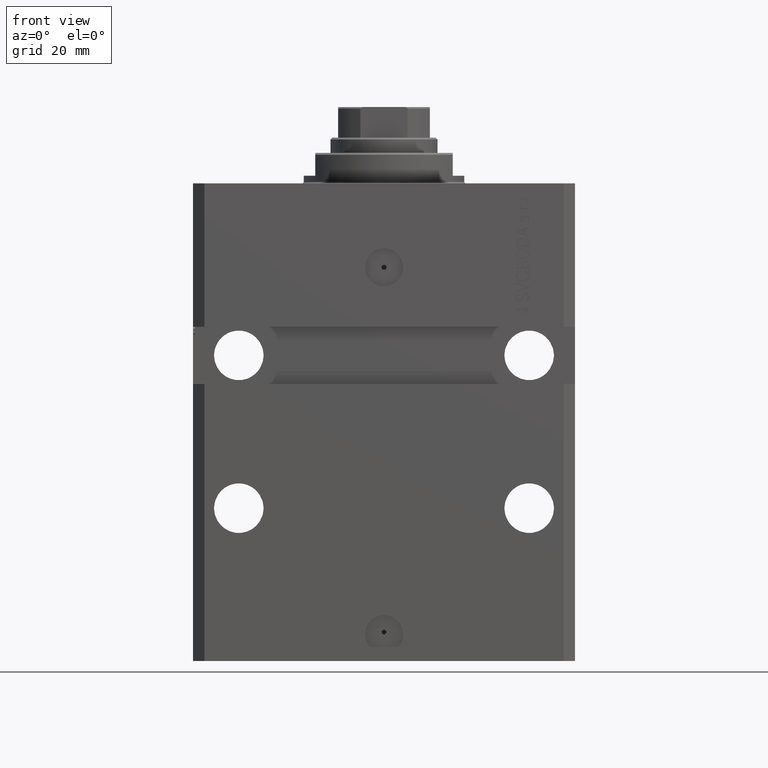
[diagram: clean part render]
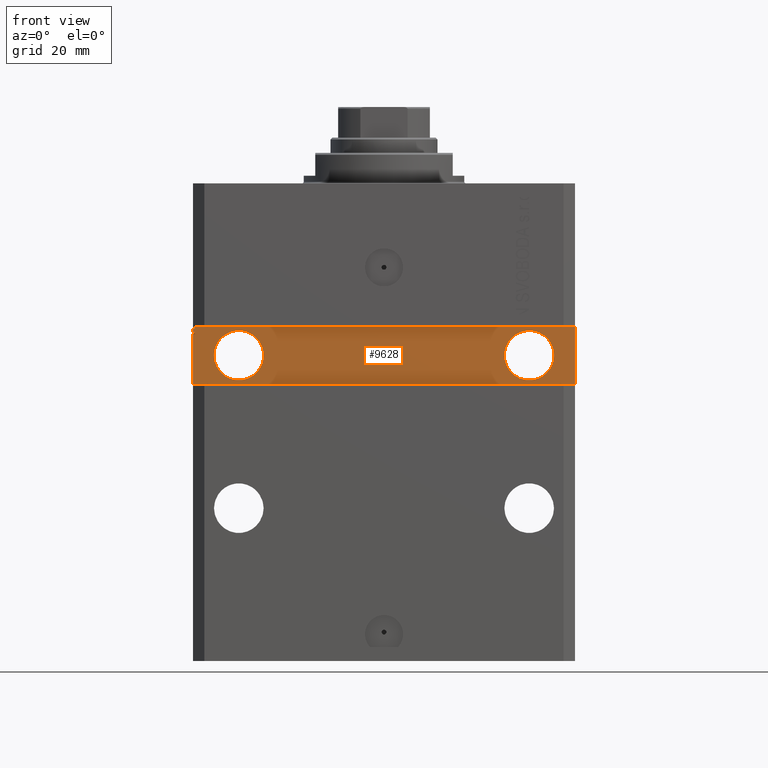
[diagram: same view with one face highlighted and labeled with its STEP entity id]
A machine part, front view. The second image highlights one B-rep face of the part: STEP entity #9628.
In plain terms, the highlighted planar face has unit normal (0, -1, 0).
Its self-contained STEP definition (entity closure, byte-faithful):
#385 = DIRECTION ( 'NONE',  ( 8.806446732139697737E-17, -1.000000000000000000, 1.232595164407830672E-32 ) ) ;
#448 = CARTESIAN_POINT ( 'NONE',  ( -50.00000000000001421, -32.50000000000000711, -38.87066340383893959 ) ) ;
#620 = PLANE ( 'NONE',  #27445 ) ;
#727 = LINE ( 'NONE', #28760, #32930 ) ;
#1464 = VERTEX_POINT ( 'NONE', #9385 ) ;
#1946 = CARTESIAN_POINT ( 'NONE',  ( -49.49999999999999289, -32.50000000000000711, -39.43474004052496440 ) ) ;
#2651 = ORIENTED_EDGE ( 'NONE', *, *, #28297, .F. ) ;
#3500 = ORIENTED_EDGE ( 'NONE', *, *, #32383, .F. ) ;
#3631 = VERTEX_POINT ( 'NONE', #29458 ) ;
#3785 = ORIENTED_EDGE ( 'NONE', *, *, #29234, .T. ) ;
#4420 = CARTESIAN_POINT ( 'NONE',  ( 44.50000000000001421, -32.50000000000000000, -45.00000000000000000 ) ) ;
#4589 = LINE ( 'NONE', #21357, #42957 ) ;
#5043 = DIRECTION ( 'NONE',  ( -1.000000000000000000, -0.000000000000000000, -0.000000000000000000 ) ) ;
#5123 = VERTEX_POINT ( 'NONE', #40687 ) ;
#5156 = CARTESIAN_POINT ( 'NONE',  ( 49.99999999999999289, -32.49999999999999289, -37.49999999999999289 ) ) ;
#5475 = VERTEX_POINT ( 'NONE', #5156 ) ;
#6593 = EDGE_CURVE ( 'NONE', #7393, #42904, #7146, .T. ) ;
#7146 = LINE ( 'NONE', #34512, #36293 ) ;
#7393 = VERTEX_POINT ( 'NONE', #10346 ) ;
#7539 = LINE ( 'NONE', #41791, #23304 ) ;
#9385 = CARTESIAN_POINT ( 'NONE',  ( -49.50000000000000711, -32.50000000000000711, -37.99999999999999289 ) ) ;
#9584 = VERTEX_POINT ( 'NONE', #25649 ) ;
#9628 = ADVANCED_FACE ( 'NONE', ( #21960, #32093, #43104 ), #620, .T. ) ;
#9895 = VECTOR ( 'NONE', #5043, 1000.000000000000000 ) ;
#9923 = CIRCLE ( 'NONE', #14333, 6.499999999999999112 ) ;
#10043 = VERTEX_POINT ( 'NONE', #23736 ) ;
#10252 = DIRECTION ( 'NONE',  ( 1.101411730780568590E-16, -1.000000000000000000, 0.000000000000000000 ) ) ;
#10346 = CARTESIAN_POINT ( 'NONE',  ( -49.49999999999977973, -32.50000000000000711, -38.87066337907741342 ) ) ;
#10526 = EDGE_CURVE ( 'NONE', #3631, #26096, #36982, .T. ) ;
#10907 = EDGE_LOOP ( 'NONE', ( #39628, #21067 ) ) ;
#10927 = ORIENTED_EDGE ( 'NONE', *, *, #32120, .F. ) ;
#11383 = AXIS2_PLACEMENT_3D ( 'NONE', #27490, #10252, #38507 ) ;
#11623 = VERTEX_POINT ( 'NONE', #25909 ) ;
#11925 = DIRECTION ( 'NONE',  ( -1.000000000000000000, -0.000000000000000000, -0.000000000000000000 ) ) ;
#12101 = AXIS2_PLACEMENT_3D ( 'NONE', #37600, #30939, #45180 ) ;
#12516 = ORIENTED_EDGE ( 'NONE', *, *, #43603, .T. ) ;
#12700 = DIRECTION ( 'NONE',  ( 0.000000000000000000, 0.000000000000000000, -1.000000000000000000 ) ) ;
#12733 = ORIENTED_EDGE ( 'NONE', *, *, #14521, .T. ) ;
#13036 = CARTESIAN_POINT ( 'NONE',  ( 38.00000000000001421, -32.50000000000000000, -45.00000000000000000 ) ) ;
#13164 = EDGE_CURVE ( 'NONE', #38892, #5475, #4589, .T. ) ;
#14333 = AXIS2_PLACEMENT_3D ( 'NONE', #35311, #385, #14830 ) ;
#14521 = EDGE_CURVE ( 'NONE', #5475, #5123, #27261, .T. ) ;
#14618 = DIRECTION ( 'NONE',  ( 1.000000000000000000, 1.387778780781445676E-16, 0.000000000000000000 ) ) ;
#14830 = DIRECTION ( 'NONE',  ( 1.000000000000000000, 0.000000000000000000, 0.000000000000000000 ) ) ;
#15219 = LINE ( 'NONE', #15882, #28756 ) ;
#15341 = ORIENTED_EDGE ( 'NONE', *, *, #30496, .T. ) ;
#15444 = DIRECTION ( 'NONE',  ( 3.791485858024926499E-13, 5.261743621399925654E-29, 1.000000000000000000 ) ) ;
#15832 = EDGE_CURVE ( 'NONE', #9584, #22515, #29050, .T. ) ;
#15882 = CARTESIAN_POINT ( 'NONE',  ( -49.50000000000016342, -32.50000000000000711, -39.86910993535713743 ) ) ;
#16162 = LINE ( 'NONE', #30211, #17996 ) ;
#16468 = VECTOR ( 'NONE', #41980, 1000.000000000000000 ) ;
#16914 = LINE ( 'NONE', #30954, #16468 ) ;
#17996 = VECTOR ( 'NONE', #26757, 1000.000000000000000 ) ;
#18091 = CARTESIAN_POINT ( 'NONE',  ( -44.49999999999998579, -32.50000000000000711, -45.00000000000000711 ) ) ;
#18894 = VECTOR ( 'NONE', #12700, 1000.000000000000000 ) ;
#19866 = VERTEX_POINT ( 'NONE', #18091 ) ;
#20149 = ORIENTED_EDGE ( 'NONE', *, *, #10526, .F. ) ;
#20916 = CARTESIAN_POINT ( 'NONE',  ( -50.00000000000001421, -32.50000000000000711, -37.50000000000000711 ) ) ;
#21067 = ORIENTED_EDGE ( 'NONE', *, *, #32034, .F. ) ;
#21357 = CARTESIAN_POINT ( 'NONE',  ( 49.99999999999999289, -32.49999999999999289, -52.49999999999998579 ) ) ;
#21518 = VERTEX_POINT ( 'NONE', #33225 ) ;
#21960 = FACE_BOUND ( 'NONE', #34013, .T. ) ;
#22515 = VERTEX_POINT ( 'NONE', #24702 ) ;
#22559 = CARTESIAN_POINT ( 'NONE',  ( -50.00000000000001421, -32.50000000000000711, -37.50000000000000711 ) ) ;
#23046 = LINE ( 'NONE', #20916, #18894 ) ;
#23066 = EDGE_CURVE ( 'NONE', #22515, #38892, #7539, .T. ) ;
#23304 = VECTOR ( 'NONE', #35356, 1000.000000000000000 ) ;
#23736 = CARTESIAN_POINT ( 'NONE',  ( 31.50000000000001421, -32.50000000000000000, -45.00000000000000000 ) ) ;
#24702 = CARTESIAN_POINT ( 'NONE',  ( -50.00000000000001421, -32.50000000000000711, -52.50000000000000000 ) ) ;
#25415 = CARTESIAN_POINT ( 'NONE',  ( 4.616128571667027759E-15, -32.50000000000000000, 0.000000000000000000 ) ) ;
#25525 = CARTESIAN_POINT ( 'NONE',  ( -49.50000000000000711, -32.49999999999999289, -37.62144886363635976 ) ) ;
#25582 = CARTESIAN_POINT ( 'NONE',  ( 49.99999999999999289, -32.49999999999999289, -52.49999999999998579 ) ) ;
#25649 = CARTESIAN_POINT ( 'NONE',  ( -50.00000000000001421, -32.50000000000000711, -39.43474002179300442 ) ) ;
#25909 = CARTESIAN_POINT ( 'NONE',  ( -31.49999999999998579, -32.50000000000000711, -45.00000000000000711 ) ) ;
#26096 = VERTEX_POINT ( 'NONE', #30656 ) ;
#26568 = ORIENTED_EDGE ( 'NONE', *, *, #6593, .F. ) ;
#26757 = DIRECTION ( 'NONE',  ( 1.000000000000000000, 0.000000000000000000, 0.000000000000000000 ) ) ;
#26770 = AXIS2_PLACEMENT_3D ( 'NONE', #13036, #34434, #30978 ) ;
#27033 = DIRECTION ( 'NONE',  ( -1.000000000000000000, -1.387778780781445676E-16, -1.387778780781445676E-16 ) ) ;
#27261 = LINE ( 'NONE', #38505, #43721 ) ;
#27445 = AXIS2_PLACEMENT_3D ( 'NONE', #25415, #29102, #14618 ) ;
#27490 = CARTESIAN_POINT ( 'NONE',  ( -37.99999999999998579, -32.50000000000000711, -45.00000000000000711 ) ) ;
#28297 = EDGE_CURVE ( 'NONE', #44810, #7393, #15219, .T. ) ;
#28756 = VECTOR ( 'NONE', #15444, 1000.000000000000000 ) ;
#28760 = CARTESIAN_POINT ( 'NONE',  ( -50.00000000000001421, -32.50000000000000711, -37.50000000000000711 ) ) ;
#29050 = LINE ( 'NONE', #22559, #37897 ) ;
#29102 = DIRECTION ( 'NONE',  ( 1.387778780781445676E-16, -1.000000000000000000, 0.000000000000000000 ) ) ;
#29234 = EDGE_CURVE ( 'NONE', #3631, #1464, #16914, .T. ) ;
#29417 = DIRECTION ( 'NONE',  ( 0.000000000000000000, 0.000000000000000000, -1.000000000000000000 ) ) ;
#29458 = CARTESIAN_POINT ( 'NONE',  ( -49.50000000000000711, -32.50000000000000711, -37.62144886363635976 ) ) ;
#29707 = DIRECTION ( 'NONE',  ( 0.000000000000000000, 0.000000000000000000, -1.000000000000000000 ) ) ;
#29776 = EDGE_CURVE ( 'NONE', #10043, #34805, #31903, .T. ) ;
#30211 = CARTESIAN_POINT ( 'NONE',  ( -49.50000000000001421, -32.50000000000000711, -39.43474002179300442 ) ) ;
#30496 = EDGE_CURVE ( 'NONE', #1464, #21518, #36744, .T. ) ;
#30656 = CARTESIAN_POINT ( 'NONE',  ( -50.00000000000001421, -32.50000000000000711, -37.62144886363636687 ) ) ;
#30939 = DIRECTION ( 'NONE',  ( 1.101411730780568590E-16, -1.000000000000000000, 0.000000000000000000 ) ) ;
#30954 = CARTESIAN_POINT ( 'NONE',  ( -49.50000000000000711, -32.49999999999999289, -37.62144886363635976 ) ) ;
#30964 = EDGE_CURVE ( 'NONE', #11623, #19866, #45137, .T. ) ;
#30978 = DIRECTION ( 'NONE',  ( 1.000000000000000000, 0.000000000000000000, 0.000000000000000000 ) ) ;
#31903 = CIRCLE ( 'NONE', #26770, 6.499999999999999112 ) ;
#32034 = EDGE_CURVE ( 'NONE', #19866, #11623, #43683, .T. ) ;
#32093 = FACE_BOUND ( 'NONE', #10907, .T. ) ;
#32120 = EDGE_CURVE ( 'NONE', #34805, #10043, #9923, .T. ) ;
#32383 = EDGE_CURVE ( 'NONE', #9584, #44810, #16162, .T. ) ;
#32892 = ORIENTED_EDGE ( 'NONE', *, *, #23066, .T. ) ;
#32930 = VECTOR ( 'NONE', #29417, 1000.000000000000000 ) ;
#33225 = CARTESIAN_POINT ( 'NONE',  ( -50.00000000000001421, -32.50000000000000711, -37.99999999999999289 ) ) ;
#33695 = ORIENTED_EDGE ( 'NONE', *, *, #13164, .T. ) ;
#34013 = EDGE_LOOP ( 'NONE', ( #10927, #36225 ) ) ;
#34280 = DIRECTION ( 'NONE',  ( -1.000000000000000000, -0.000000000000000000, -0.000000000000000000 ) ) ;
#34434 = DIRECTION ( 'NONE',  ( 8.806446732139697737E-17, -1.000000000000000000, 1.232595164407830672E-32 ) ) ;
#34512 = CARTESIAN_POINT ( 'NONE',  ( -49.50000000000001421, -32.50000000000001421, -38.87066340383893959 ) ) ;
#34805 = VERTEX_POINT ( 'NONE', #4420 ) ;
#35311 = CARTESIAN_POINT ( 'NONE',  ( 38.00000000000001421, -32.50000000000000000, -45.00000000000000000 ) ) ;
#35356 = DIRECTION ( 'NONE',  ( 1.000000000000000000, 1.387778780781445676E-16, 1.387778780781445676E-16 ) ) ;
#35394 = DIRECTION ( 'NONE',  ( 0.000000000000000000, 0.000000000000000000, 1.000000000000000000 ) ) ;
#36225 = ORIENTED_EDGE ( 'NONE', *, *, #29776, .F. ) ;
#36293 = VECTOR ( 'NONE', #34280, 1000.000000000000000 ) ;
#36744 = LINE ( 'NONE', #44538, #9895 ) ;
#36982 = LINE ( 'NONE', #25525, #45075 ) ;
#37600 = CARTESIAN_POINT ( 'NONE',  ( -37.99999999999998579, -32.50000000000000711, -45.00000000000000711 ) ) ;
#37897 = VECTOR ( 'NONE', #29707, 1000.000000000000000 ) ;
#37961 = EDGE_CURVE ( 'NONE', #5123, #26096, #23046, .T. ) ;
#38505 = CARTESIAN_POINT ( 'NONE',  ( 49.99999999999999289, -32.49999999999999289, -37.49999999999999289 ) ) ;
#38507 = DIRECTION ( 'NONE',  ( 1.000000000000000000, 0.000000000000000000, 0.000000000000000000 ) ) ;
#38775 = ORIENTED_EDGE ( 'NONE', *, *, #15832, .T. ) ;
#38892 = VERTEX_POINT ( 'NONE', #25582 ) ;
#39055 = EDGE_LOOP ( 'NONE', ( #12516, #26568, #2651, #3500, #38775, #32892, #33695, #12733, #39215, #20149, #3785, #15341 ) ) ;
#39215 = ORIENTED_EDGE ( 'NONE', *, *, #37961, .T. ) ;
#39628 = ORIENTED_EDGE ( 'NONE', *, *, #30964, .F. ) ;
#40687 = CARTESIAN_POINT ( 'NONE',  ( -50.00000000000001421, -32.50000000000000711, -37.50000000000000711 ) ) ;
#41791 = CARTESIAN_POINT ( 'NONE',  ( -50.00000000000001421, -32.50000000000000711, -52.50000000000000000 ) ) ;
#41980 = DIRECTION ( 'NONE',  ( 0.000000000000000000, 0.000000000000000000, -1.000000000000000000 ) ) ;
#42904 = VERTEX_POINT ( 'NONE', #448 ) ;
#42957 = VECTOR ( 'NONE', #35394, 1000.000000000000000 ) ;
#43104 = FACE_OUTER_BOUND ( 'NONE', #39055, .T. ) ;
#43603 = EDGE_CURVE ( 'NONE', #21518, #42904, #727, .T. ) ;
#43683 = CIRCLE ( 'NONE', #12101, 6.499999999999999112 ) ;
#43721 = VECTOR ( 'NONE', #27033, 1000.000000000000000 ) ;
#44538 = CARTESIAN_POINT ( 'NONE',  ( -49.50000000000000711, -32.49999999999999289, -37.99999999999999289 ) ) ;
#44810 = VERTEX_POINT ( 'NONE', #1946 ) ;
#45075 = VECTOR ( 'NONE', #11925, 1000.000000000000000 ) ;
#45137 = CIRCLE ( 'NONE', #11383, 6.499999999999999112 ) ;
#45180 = DIRECTION ( 'NONE',  ( 1.000000000000000000, 0.000000000000000000, 0.000000000000000000 ) ) ;